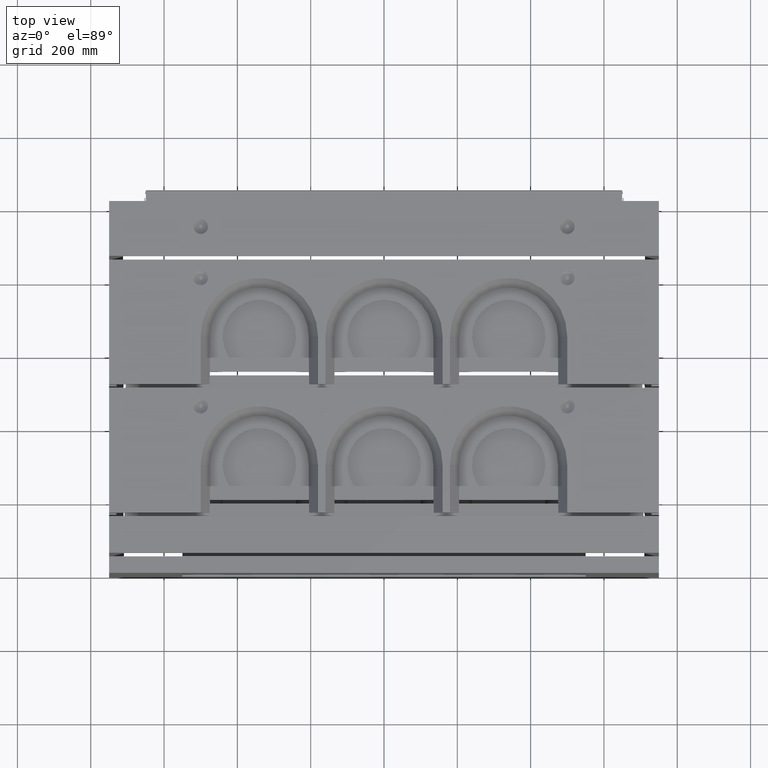
[diagram: clean part render]
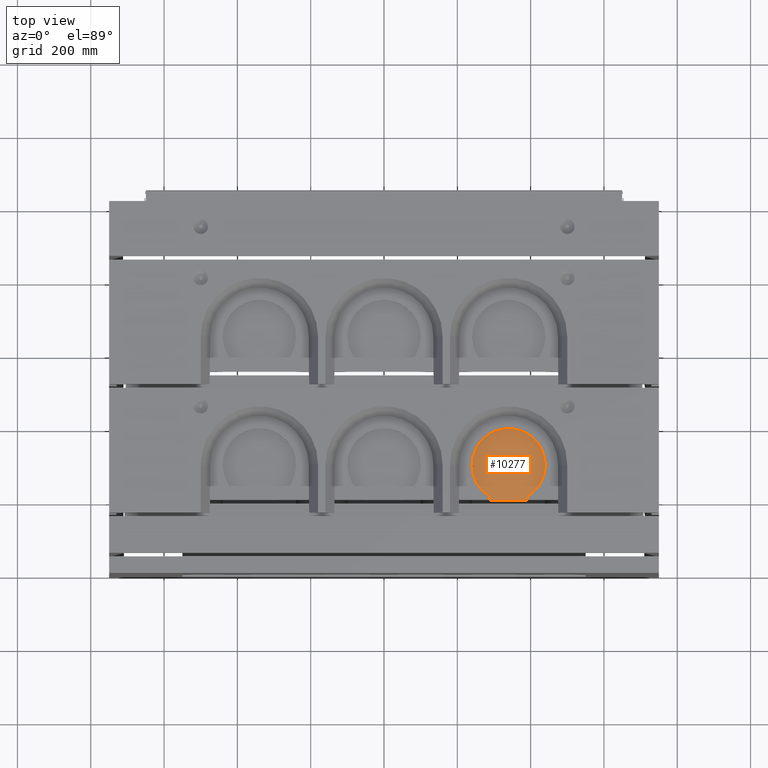
[diagram: same view with one face highlighted and labeled with its STEP entity id]
A machine part, top view. The second image highlights one B-rep face of the part: STEP entity #10277.
In plain terms, the highlighted planar face has unit normal (0, -0, 1).
Its self-contained STEP definition (entity closure, byte-faithful):
#14 = CARTESIAN_POINT ( 'NONE',  ( 289.0000000000001137, 208.9825599078884295, 349.9999999999996589 ) ) ;
#2386 = CARTESIAN_POINT ( 'NONE',  ( 340.0000000000000000, 295.0000000000000568, 349.9999999999997158 ) ) ;
#2402 = EDGE_CURVE ( 'NONE', #28996, #34263, #12133, .T. ) ;
#3762 = CARTESIAN_POINT ( 'NONE',  ( 391.0000000000000568, 200.0000000000000000, 349.9999999999996589 ) ) ;
#4222 = VECTOR ( 'NONE', #29060, 1000.000000000000000 ) ;
#8228 = DIRECTION ( 'NONE',  ( 1.734723475976808019E-17, -4.996003610813204432E-16, 1.000000000000000000 ) ) ;
#9025 = CARTESIAN_POINT ( 'NONE',  ( 711.5000000000001137, 200.0000000000000000, 349.9999999999997158 ) ) ;
#10152 = DIRECTION ( 'NONE',  ( 1.734723475976807711E-17, -4.996003610813204432E-16, 1.000000000000000000 ) ) ;
#10277 = ADVANCED_FACE ( 'NONE', ( #13905 ), #16516, .T. ) ;
#10608 = EDGE_LOOP ( 'NONE', ( #28252, #29697, #35123, #16156 ) ) ;
#10717 = CARTESIAN_POINT ( 'NONE',  ( 289.0000000000001137, 200.0000000000000000, 349.9999999999996589 ) ) ;
#11044 = CARTESIAN_POINT ( 'NONE',  ( 391.0000000000000568, 208.9825599078884579, 349.9999999999996589 ) ) ;
#12133 = LINE ( 'NONE', #11044, #4222 ) ;
#12944 = VERTEX_POINT ( 'NONE', #14 ) ;
#13005 = EDGE_CURVE ( 'NONE', #34211, #28996, #13310, .T. ) ;
#13310 = LINE ( 'NONE', #9025, #36183 ) ;
#13540 = DIRECTION ( 'NONE',  ( -1.881626355904905735E-48, -1.000000000000000000, -2.775557561562891351E-16 ) ) ;
#13816 = CIRCLE ( 'NONE', #15284, 100.0000000000000284 ) ;
#13905 = FACE_OUTER_BOUND ( 'NONE', #10608, .T. ) ;
#14607 = EDGE_CURVE ( 'NONE', #34263, #12944, #13816, .T. ) ;
#15234 = VECTOR ( 'NONE', #13540, 1000.000000000000000 ) ;
#15284 = AXIS2_PLACEMENT_3D ( 'NONE', #16071, #10152, #31182 ) ;
#16071 = CARTESIAN_POINT ( 'NONE',  ( 340.0000000000000000, 295.0000000000000568, 349.9999999999997158 ) ) ;
#16156 = ORIENTED_EDGE ( 'NONE', *, *, #25740, .T. ) ;
#16516 = PLANE ( 'NONE',  #36861 ) ;
#20798 = DIRECTION ( 'NONE',  ( 1.000000000000000000, 8.474091755303837753E-33, -1.734723475976808019E-17 ) ) ;
#25740 = EDGE_CURVE ( 'NONE', #12944, #34211, #32059, .T. ) ;
#28252 = ORIENTED_EDGE ( 'NONE', *, *, #13005, .T. ) ;
#28354 = CARTESIAN_POINT ( 'NONE',  ( 391.0000000000000568, 208.9825599078884579, 349.9999999999996589 ) ) ;
#28996 = VERTEX_POINT ( 'NONE', #3762 ) ;
#29060 = DIRECTION ( 'NONE',  ( 1.881626355904905735E-48, 1.000000000000000000, 2.775557561562891351E-16 ) ) ;
#29523 = DIRECTION ( 'NONE',  ( 1.000000000000000000, 8.474091755303837753E-33, -1.734723475976808019E-17 ) ) ;
#29697 = ORIENTED_EDGE ( 'NONE', *, *, #2402, .T. ) ;
#31182 = DIRECTION ( 'NONE',  ( 1.000000000000000000, 0.0000000000000000000, 0.0000000000000000000 ) ) ;
#32059 = LINE ( 'NONE', #37159, #15234 ) ;
#34211 = VERTEX_POINT ( 'NONE', #10717 ) ;
#34263 = VERTEX_POINT ( 'NONE', #28354 ) ;
#35123 = ORIENTED_EDGE ( 'NONE', *, *, #14607, .T. ) ;
#36183 = VECTOR ( 'NONE', #20798, 1000.000000000000000 ) ;
#36861 = AXIS2_PLACEMENT_3D ( 'NONE', #2386, #8228, #29523 ) ;
#37159 = CARTESIAN_POINT ( 'NONE',  ( 289.0000000000001137, 208.9825599078884295, 349.9999999999996589 ) ) ;